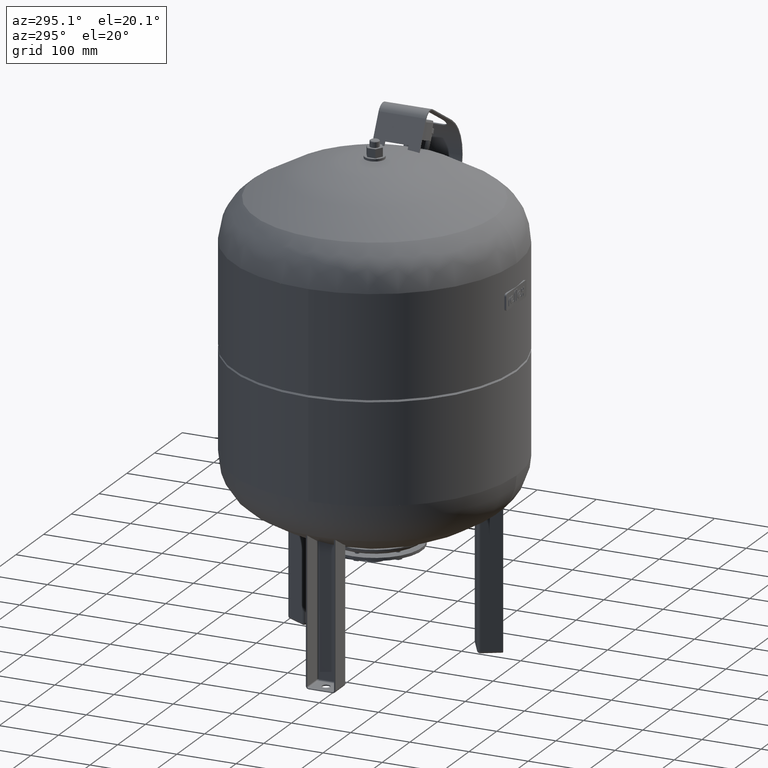
[diagram: clean part render]
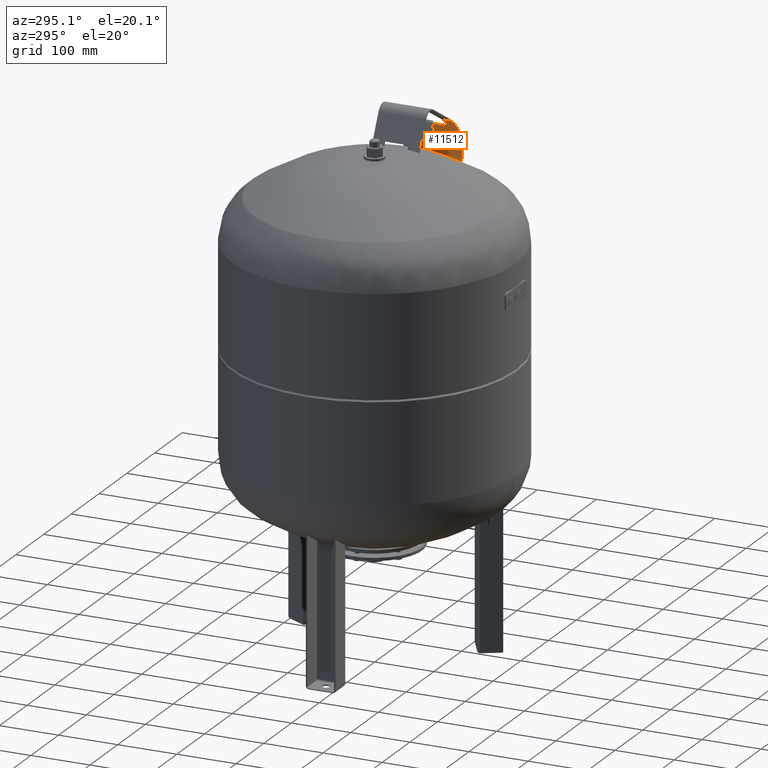
[diagram: same view with one face highlighted and labeled with its STEP entity id]
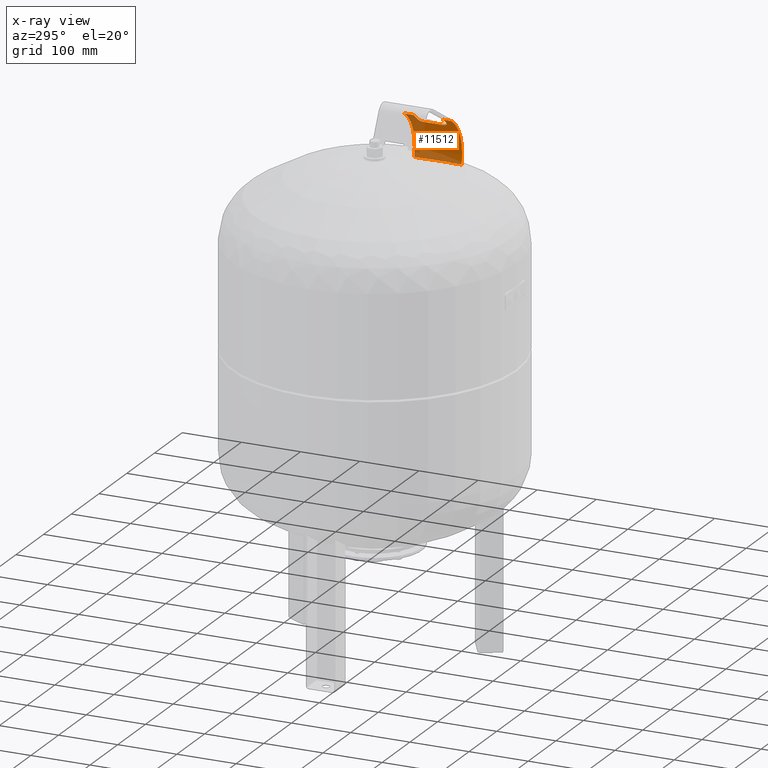
[diagram: x-ray of the same camera — body ghosted, the highlighted face saturated]
A machine part, auxiliary view. The second image highlights one B-rep face of the part: STEP entity #11512.
The next image is the same camera in x-ray: the body ghosted, the highlighted face saturated — about 37% of this face is hidden behind the body in this view.
In plain terms, the highlighted cylindrical surface (partial cylindrical patch) has radius 77 mm, axis along (0, 1, -0).
Its self-contained STEP definition (entity closure, byte-faithful):
#10904=CARTESIAN_POINT('',(228.358879790388390,19.999999999999996,724.666210289233160));
#10905=VERTEX_POINT('',#10904);
#10906=CARTESIAN_POINT('',(228.358879790388390,-20.000000000000004,724.666210289233160));
#10907=VERTEX_POINT('',#10906);
#10908=CARTESIAN_POINT('',(228.358879790388390,19.999999999999996,724.666210289233160));
#10909=DIRECTION('',(0.0,-1.0,0.0));
#10910=VECTOR('',#10909,40.0);
#10911=LINE('',#10908,#10910);
#10912=EDGE_CURVE('',#10905,#10907,#10911,.T.);
#11115=CARTESIAN_POINT('',(206.094623981544630,-24.999999999999968,796.529464788992980));
#11116=VERTEX_POINT('',#11115);
#11117=CARTESIAN_POINT('',(211.538319328068380,-16.999999999999996,790.795963928919040));
#11118=VERTEX_POINT('',#11117);
#11119=CARTESIAN_POINT('',(206.094623981544600,-24.999999999999968,796.529464788992980));
#11120=CARTESIAN_POINT('',(206.828523549911410,-25.000054252147915,795.831985344680220));
#11121=CARTESIAN_POINT('',(207.541617588711600,-24.803387375114578,795.125783190027280));
#11122=CARTESIAN_POINT('',(208.872152242460000,-24.026548571467849,793.760342961548190));
#11123=CARTESIAN_POINT('',(209.471665437080390,-23.444225060752544,793.118540358591640));
#11124=CARTESIAN_POINT('',(210.454620906592770,-21.994813563525724,792.039579997799820));
#11125=CARTESIAN_POINT('',(210.835155187688800,-21.150371259298808,791.607293934368840));
#11126=CARTESIAN_POINT('',(211.242967235628610,-19.723168150516205,791.139319075855950));
#11127=CARTESIAN_POINT('',(211.351158980168350,-19.204348212704993,791.013846272994440));
#11128=CARTESIAN_POINT('',(211.500375363387860,-18.122102899651335,790.840379077036570));
#11129=CARTESIAN_POINT('',(211.538337223651410,-17.561256978929741,790.795943029106750));
#11130=CARTESIAN_POINT('',(211.538319328068330,-16.999999999999996,790.795963928919150));
#11131=B_SPLINE_CURVE_WITH_KNOTS('',3,(#11119,#11120,#11121,#11122,#11123,#11124,#11125,#11126,#11127,#11128,#11129,#11130),.UNSPECIFIED.,.F.,.U.,(4,2,2,2,2,4),(0.0,0.303739615323379,0.616196552934148,0.919310560861628,1.081828421039831,1.250261438767904),.UNSPECIFIED.);
#11132=EDGE_CURVE('',#11116,#11118,#11131,.T.);
#11173=CARTESIAN_POINT('',(211.538319328068300,16.999999999999996,790.795963928919150));
#11174=VERTEX_POINT('',#11173);
#11175=CARTESIAN_POINT('',(211.538319328068380,-16.999999999999996,790.795963928919040));
#11176=DIRECTION('',(0.0,1.0,0.0));
#11177=VECTOR('',#11176,33.999999999999993);
#11178=LINE('',#11175,#11177);
#11179=EDGE_CURVE('',#11118,#11174,#11178,.T.);
#11375=CARTESIAN_POINT('',(206.094623981544630,24.999999999999996,796.529464788992980));
#11376=VERTEX_POINT('',#11375);
#11377=CARTESIAN_POINT('',(211.538319328068330,16.999999999999989,790.795963928919150));
#11378=CARTESIAN_POINT('',(211.538352006970680,18.024904396707662,790.795925764031150));
#11379=CARTESIAN_POINT('',(211.412124680621760,19.043232444110512,790.944418297204720));
#11380=CARTESIAN_POINT('',(210.918427477283730,20.926164008012297,791.512333960351840));
#11381=CARTESIAN_POINT('',(210.562039980793320,21.777211219910193,791.918701270909420));
#11382=CARTESIAN_POINT('',(209.642834562061720,23.236481664263540,792.932880221480560));
#11383=CARTESIAN_POINT('',(209.087495471755090,23.830948027298895,793.531733463913610));
#11384=CARTESIAN_POINT('',(208.095752703660710,24.501397863279802,794.559440927069320));
#11385=CARTESIAN_POINT('',(207.712127978804940,24.688186523835235,794.949258470748650));
#11386=CARTESIAN_POINT('',(206.916937344345740,24.937471431400816,795.739097087090840));
#11387=CARTESIAN_POINT('',(206.508414104123120,25.000030588658014,796.136209203081650));
#11388=CARTESIAN_POINT('',(206.094623981544600,24.999999999999961,796.529464788992980));
#11389=B_SPLINE_CURVE_WITH_KNOTS('',3,(#11377,#11378,#11379,#11380,#11381,#11382,#11383,#11384,#11385,#11386,#11387,#11388),.UNSPECIFIED.,.F.,.U.,(4,2,2,2,2,4),(0.0,0.307471319381771,0.606340435479461,0.905895855446849,1.078295054299567,1.249366122079316),.UNSPECIFIED.);
#11390=EDGE_CURVE('',#11174,#11376,#11389,.T.);
#11419=CARTESIAN_POINT('',(153.049929203743350,-3.197027E-015,740.714947359117220));
#11420=DIRECTION('',(2.043270E-017,1.0,-1.193991E-017));
#11421=DIRECTION('',(0.504527623815021,0.0,0.863395550606771));
#11422=AXIS2_PLACEMENT_3D('',#11419,#11420,#11421);
#11423=CYLINDRICAL_SURFACE('',#11422,77.000000000000028);
#11424=CARTESIAN_POINT('',(191.898556237500030,39.999999999999993,807.196404755838440));
#11425=VERTEX_POINT('',#11424);
#11426=CARTESIAN_POINT('',(228.282438435258630,39.999999999999993,724.311607615943900));
#11427=VERTEX_POINT('',#11426);
#11428=CARTESIAN_POINT('',(153.049929203743350,39.999999999999986,740.714947359117220));
#11429=DIRECTION('',(0.0,1.000000000000000,0.0));
#11430=DIRECTION('',(0.504527623815021,0.0,0.863395550606771));
#11431=AXIS2_PLACEMENT_3D('',#11428,#11429,#11430);
#11432=CIRCLE('',#11431,77.000000000000014);
#11433=EDGE_CURVE('',#11425,#11427,#11432,.T.);
#11434=ORIENTED_EDGE('',*,*,#11433,.T.);
#11435=CARTESIAN_POINT('',(228.282438435258630,19.999999999999996,724.311607615943900));
#11436=VERTEX_POINT('',#11435);
#11437=CARTESIAN_POINT('',(228.282438435258630,19.999999999999996,724.311607615943900));
#11438=DIRECTION('',(0.0,1.0,0.0));
#11439=VECTOR('',#11438,19.999999999999996);
#11440=LINE('',#11437,#11439);
#11441=EDGE_CURVE('',#11436,#11427,#11440,.T.);
#11442=ORIENTED_EDGE('',*,*,#11441,.F.);
#11443=CARTESIAN_POINT('',(153.049929203743350,20.000000000000004,740.714947359117220));
#11444=DIRECTION('',(0.0,-1.000000000000000,0.0));
#11445=DIRECTION('',(0.504527623815021,0.0,0.863395550606771));
#11446=AXIS2_PLACEMENT_3D('',#11443,#11444,#11445);
#11447=CIRCLE('',#11446,77.000000000000014);
#11448=EDGE_CURVE('',#11436,#10905,#11447,.T.);
#11449=ORIENTED_EDGE('',*,*,#11448,.T.);
#11450=ORIENTED_EDGE('',*,*,#10912,.T.);
#11451=CARTESIAN_POINT('',(228.282438435258630,-20.000000000000004,724.311607615943900));
#11452=VERTEX_POINT('',#11451);
#11453=CARTESIAN_POINT('',(153.049929203743350,-20.000000000000004,740.714947359117220));
#11454=DIRECTION('',(0.0,1.000000000000000,0.0));
#11455=DIRECTION('',(0.504527623815021,0.0,0.863395550606771));
#11456=AXIS2_PLACEMENT_3D('',#11453,#11454,#11455);
#11457=CIRCLE('',#11456,77.000000000000014);
#11458=EDGE_CURVE('',#10907,#11452,#11457,.T.);
#11459=ORIENTED_EDGE('',*,*,#11458,.T.);
#11460=CARTESIAN_POINT('',(228.282438435258630,-40.000000000000007,724.311607615943900));
#11461=VERTEX_POINT('',#11460);
#11462=CARTESIAN_POINT('',(228.282438435258630,-40.000000000000007,724.311607615943900));
#11463=DIRECTION('',(0.0,1.0,0.0));
#11464=VECTOR('',#11463,20.000000000000004);
#11465=LINE('',#11462,#11464);
#11466=EDGE_CURVE('',#11461,#11452,#11465,.T.);
#11467=ORIENTED_EDGE('',*,*,#11466,.F.);
#11468=CARTESIAN_POINT('',(191.898556237500030,-40.0,807.196404755838440));
#11469=VERTEX_POINT('',#11468);
#11470=CARTESIAN_POINT('',(153.049929203743350,-40.0,740.714947359117220));
#11471=DIRECTION('',(0.0,-1.000000000000000,0.0));
#11472=DIRECTION('',(0.504527623815021,0.0,0.863395550606771));
#11473=AXIS2_PLACEMENT_3D('',#11470,#11471,#11472);
#11474=CIRCLE('',#11473,77.000000000000014);
#11475=EDGE_CURVE('',#11461,#11469,#11474,.T.);
#11476=ORIENTED_EDGE('',*,*,#11475,.T.);
#11477=CARTESIAN_POINT('',(191.898556237500030,-25.000000000000004,807.196404755838440));
#11478=VERTEX_POINT('',#11477);
#11479=CARTESIAN_POINT('',(191.898556237500030,-25.000000000000004,807.196404755838440));
#11480=DIRECTION('',(0.0,-1.0,0.0));
#11481=VECTOR('',#11480,14.999999999999996);
#11482=LINE('',#11479,#11481);
#11483=EDGE_CURVE('',#11478,#11469,#11482,.T.);
#11484=ORIENTED_EDGE('',*,*,#11483,.F.);
#11485=CARTESIAN_POINT('',(153.049929203743350,-25.000000000000004,740.714947359117220));
#11486=DIRECTION('',(0.0,1.000000000000000,0.0));
#11487=DIRECTION('',(0.504527623815021,0.0,0.863395550606771));
#11488=AXIS2_PLACEMENT_3D('',#11485,#11486,#11487);
#11489=CIRCLE('',#11488,77.000000000000014);
#11490=EDGE_CURVE('',#11478,#11116,#11489,.T.);
#11491=ORIENTED_EDGE('',*,*,#11490,.T.);
#11492=ORIENTED_EDGE('',*,*,#11132,.T.);
#11493=ORIENTED_EDGE('',*,*,#11179,.T.);
#11494=ORIENTED_EDGE('',*,*,#11390,.T.);
#11495=CARTESIAN_POINT('',(191.898556237500030,24.999999999999996,807.196404755838440));
#11496=VERTEX_POINT('',#11495);
#11497=CARTESIAN_POINT('',(153.049929203743350,24.999999999999996,740.714947359117220));
#11498=DIRECTION('',(0.0,-1.000000000000000,0.0));
#11499=DIRECTION('',(0.504527623815021,0.0,0.863395550606771));
#11500=AXIS2_PLACEMENT_3D('',#11497,#11498,#11499);
#11501=CIRCLE('',#11500,77.000000000000014);
#11502=EDGE_CURVE('',#11376,#11496,#11501,.T.);
#11503=ORIENTED_EDGE('',*,*,#11502,.T.);
#11504=CARTESIAN_POINT('',(191.898556237500030,39.999999999999993,807.196404755838440));
#11505=DIRECTION('',(0.0,-1.0,0.0));
#11506=VECTOR('',#11505,14.999999999999996);
#11507=LINE('',#11504,#11506);
#11508=EDGE_CURVE('',#11425,#11496,#11507,.T.);
#11509=ORIENTED_EDGE('',*,*,#11508,.F.);
#11510=EDGE_LOOP('',(#11434,#11442,#11449,#11450,#11459,#11467,#11476,#11484,#11491,#11492,#11493,#11494,#11503,#11509));
#11511=FACE_OUTER_BOUND('',#11510,.T.);
#11512=ADVANCED_FACE('',(#11511),#11423,.F.);